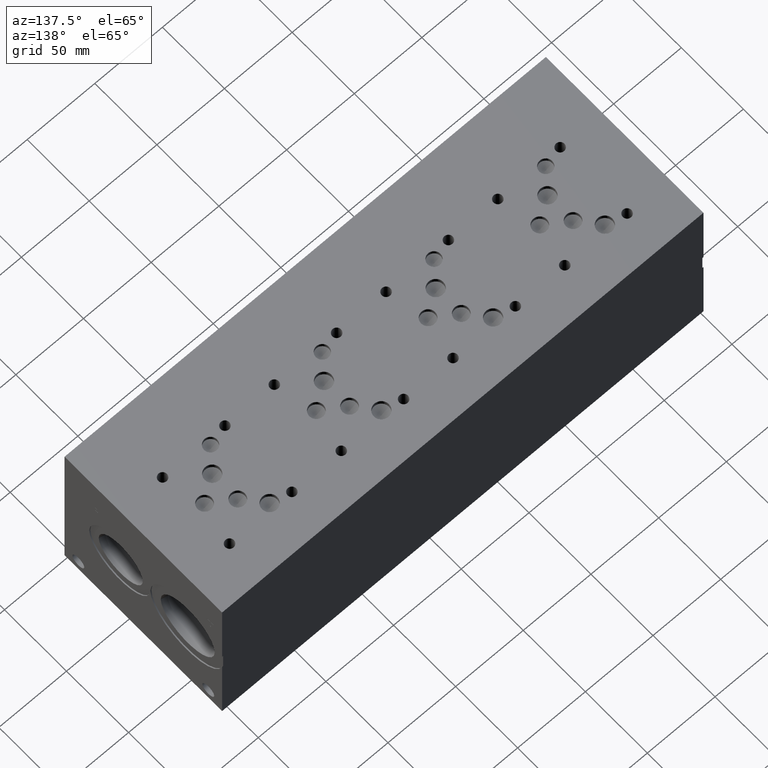
[diagram: clean part render]
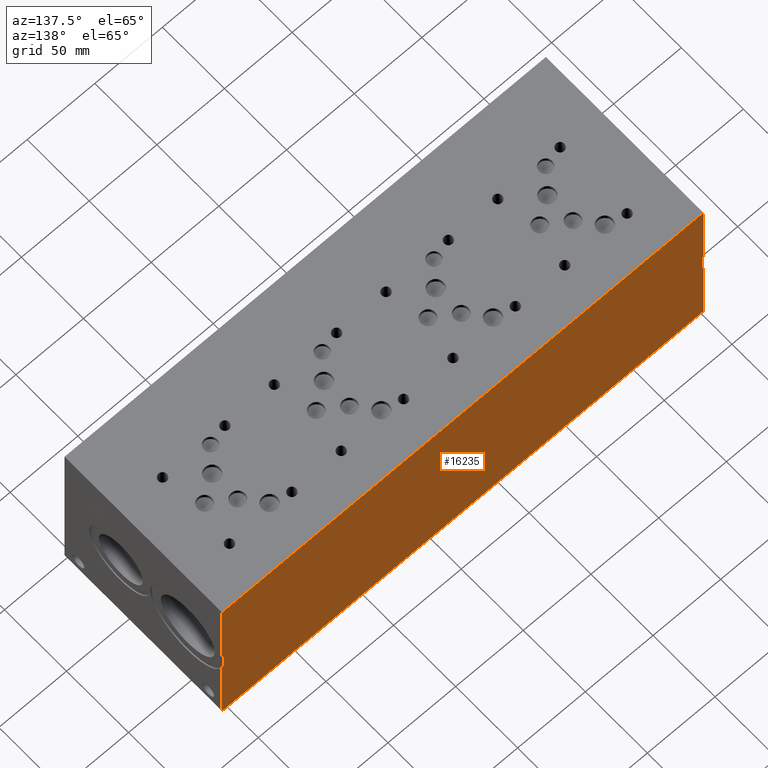
[diagram: same view with one face highlighted and labeled with its STEP entity id]
A machine part, auxiliary view. The second image highlights one B-rep face of the part: STEP entity #16235.
In plain terms, the highlighted planar face has unit normal (0, 1, 0).
Its self-contained STEP definition (entity closure, byte-faithful):
#2065=FACE_OUTER_BOUND('',#3009,.T.);
#3009=EDGE_LOOP('',(#13393,#13394,#13395,#13396,#13397,#13398,#13399,#13400,
#13401,#13402,#13403,#13404));
#3387=LINE('',#21659,#4820);
#3391=LINE('',#21666,#4824);
#3448=LINE('',#21934,#4881);
#3452=LINE('',#21941,#4885);
#4524=LINE('',#27116,#5957);
#4525=LINE('',#27121,#5958);
#4526=LINE('',#27122,#5959);
#4551=LINE('',#27262,#5984);
#4552=LINE('',#27269,#5985);
#4553=LINE('',#27270,#5986);
#4557=LINE('',#27286,#5990);
#4558=LINE('',#27287,#5991);
#4820=VECTOR('',#17752,10.);
#4824=VECTOR('',#17756,10.);
#4881=VECTOR('',#17865,10.);
#4885=VECTOR('',#17869,10.);
#5957=VECTOR('',#19725,10.);
#5958=VECTOR('',#19732,10.);
#5959=VECTOR('',#19733,10.);
#5984=VECTOR('',#19898,10.);
#5985=VECTOR('',#19907,10.);
#5986=VECTOR('',#19908,10.);
#5990=VECTOR('',#19928,10.);
#5991=VECTOR('',#19929,10.);
#6245=VERTEX_POINT('',#21655);
#6246=VERTEX_POINT('',#21656);
#6247=VERTEX_POINT('',#21658);
#6250=VERTEX_POINT('',#21664);
#6305=VERTEX_POINT('',#21930);
#6306=VERTEX_POINT('',#21931);
#6307=VERTEX_POINT('',#21933);
#6310=VERTEX_POINT('',#21939);
#7284=VERTEX_POINT('',#27114);
#7285=VERTEX_POINT('',#27115);
#7330=VERTEX_POINT('',#27260);
#7331=VERTEX_POINT('',#27261);
#7846=EDGE_CURVE('',#6246,#6247,#3387,.T.);
#7850=EDGE_CURVE('',#6250,#6245,#3391,.T.);
#7930=EDGE_CURVE('',#6307,#6306,#3448,.T.);
#7934=EDGE_CURVE('',#6305,#6310,#3452,.T.);
#9384=EDGE_CURVE('',#7284,#7285,#4524,.T.);
#9387=EDGE_CURVE('',#7285,#6245,#4525,.T.);
#9388=EDGE_CURVE('',#6246,#7284,#4526,.T.);
#9452=EDGE_CURVE('',#7330,#7331,#4551,.T.);
#9456=EDGE_CURVE('',#6306,#7330,#4552,.T.);
#9457=EDGE_CURVE('',#7331,#6305,#4553,.T.);
#9465=EDGE_CURVE('',#6250,#6307,#4557,.T.);
#9466=EDGE_CURVE('',#6247,#6310,#4558,.T.);
#13393=ORIENTED_EDGE('',*,*,#9387,.T.);
#13394=ORIENTED_EDGE('',*,*,#7850,.F.);
#13395=ORIENTED_EDGE('',*,*,#9465,.T.);
#13396=ORIENTED_EDGE('',*,*,#7930,.T.);
#13397=ORIENTED_EDGE('',*,*,#9456,.T.);
#13398=ORIENTED_EDGE('',*,*,#9452,.T.);
#13399=ORIENTED_EDGE('',*,*,#9457,.T.);
#13400=ORIENTED_EDGE('',*,*,#7934,.T.);
#13401=ORIENTED_EDGE('',*,*,#9466,.F.);
#13402=ORIENTED_EDGE('',*,*,#7846,.F.);
#13403=ORIENTED_EDGE('',*,*,#9388,.T.);
#13404=ORIENTED_EDGE('',*,*,#9384,.T.);
#15025=PLANE('',#17019);
#16235=ADVANCED_FACE('',(#2065),#15025,.T.);
#17019=AXIS2_PLACEMENT_3D('',#27285,#19926,#19927);
#17752=DIRECTION('',(0.,0.,1.));
#17756=DIRECTION('',(0.,0.,1.));
#17865=DIRECTION('',(0.,0.,1.));
#17869=DIRECTION('',(0.,0.,1.));
#19725=DIRECTION('',(0.,0.,-1.));
#19732=DIRECTION('',(1.,0.,0.));
#19733=DIRECTION('',(-1.,0.,0.));
#19898=DIRECTION('',(0.,0.,1.));
#19907=DIRECTION('',(1.,0.,0.));
#19908=DIRECTION('',(-1.,0.,0.));
#19926=DIRECTION('center_axis',(0.,1.,0.));
#19927=DIRECTION('ref_axis',(-1.,0.,0.));
#19928=DIRECTION('',(-1.,0.,0.));
#19929=DIRECTION('',(-1.,0.,0.));
#21655=CARTESIAN_POINT('',(355.6,127.,57.0851044092674));
#21656=CARTESIAN_POINT('',(355.6,127.,69.9148955907326));
#21658=CARTESIAN_POINT('',(355.6,127.,127.));
#21659=CARTESIAN_POINT('',(355.6,127.,0.));
#21664=CARTESIAN_POINT('',(355.6,127.,0.));
#21666=CARTESIAN_POINT('',(355.6,127.,0.));
#21930=CARTESIAN_POINT('',(0.,127.,69.9148955907325));
#21931=CARTESIAN_POINT('',(0.,127.,57.0851044092675));
#21933=CARTESIAN_POINT('',(0.,127.,0.));
#21934=CARTESIAN_POINT('',(0.,127.,0.));
#21939=CARTESIAN_POINT('',(0.,127.,127.));
#21941=CARTESIAN_POINT('',(0.,127.,0.));
#27114=CARTESIAN_POINT('',(354.8126,127.,69.9148955907326));
#27115=CARTESIAN_POINT('',(354.8126,127.,57.0851044092674));
#27116=CARTESIAN_POINT('',(354.8126,127.,31.75));
#27121=CARTESIAN_POINT('',(355.2063,127.,57.0851044092674));
#27122=CARTESIAN_POINT('',(355.2063,127.,69.9148955907326));
#27260=CARTESIAN_POINT('',(0.787400000000034,127.,57.0851044092675));
#27261=CARTESIAN_POINT('',(0.787400000000034,127.,69.9148955907325));
#27262=CARTESIAN_POINT('',(0.787400000000034,127.,42.62755));
#27269=CARTESIAN_POINT('',(0.393699999999981,127.,57.0851044092675));
#27270=CARTESIAN_POINT('',(0.393699999999981,127.,69.9148955907325));
#27285=CARTESIAN_POINT('Origin',(355.6,127.,0.));
#27286=CARTESIAN_POINT('',(355.6,127.,0.));
#27287=CARTESIAN_POINT('',(355.6,127.,127.));